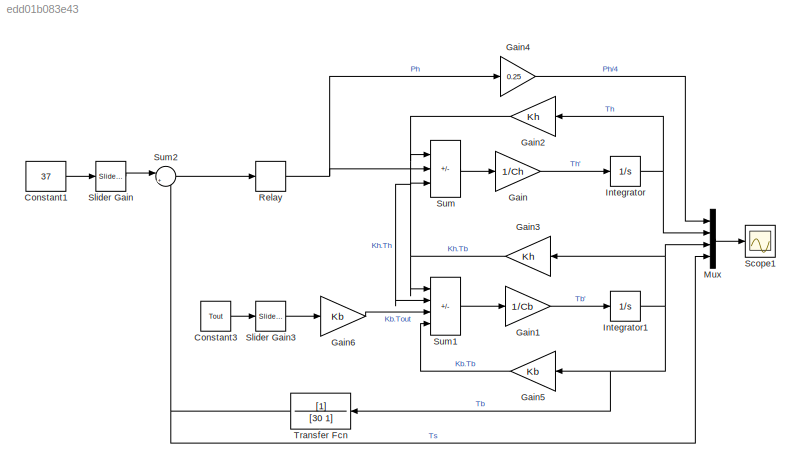
MODEL slx_edd01b083e43
KIND model
CONFIG AbsTol = auto
CONFIG EnableMultiTasking = off
CONFIG FixedStep = auto
CONFIG MaxStep = auto
CONFIG MinStep = auto
CONFIG RelTol = 1e-3
CONFIG SampleTimeConstraint = Unconstrained
CONFIG Solver = VariableStepAuto
CONFIG SolverName = VariableStepAuto
CONFIG StartTime = 0.0
CONFIG StopTime = 1000
BLOCK [Constant] Constant1
  SampleTime = 0.01
  Value = 37
BLOCK [Constant] Constant3
  Value = Tout
BLOCK [Gain] Gain
  Gain = 1/Ch
BLOCK [Gain] Gain1
  Gain = 1/Cb
BLOCK [Gain] Gain2
  Gain = Kh
BLOCK [Gain] Gain3
  Gain = Kh
BLOCK [Gain] Gain4
  Gain = 0.25
BLOCK [Gain] Gain5
  Gain = Kb
BLOCK [Gain] Gain6
  Gain = Kb
BLOCK [Integrator] Integrator
  InitialCondition = 25
  Ports = [1, 1]
BLOCK [Integrator] Integrator1
  InitialCondition = 25
  Ports = [1, 1]
BLOCK [Mux] Mux
  DisplayOption = bar
  Ports = [4, 1]
BLOCK [Relay] Relay
  OffSwitchValue = -0.01/(0.19*2)+0.3
  OnOutputValue = Ph
  OnSwitchValue = 0.01/(0.19*2)+0.3
BLOCK [Scope] Scope1
  Floating = off
  NumInputPorts = 1
  Ports = [1]
  ScopeSpecificationString = Simulink.scopes.TimeScopeBlockCfg('CurrentConfiguration', extmgr.ConfigurationSet(extmgr.Configuration('Core','General UI',true,'FigureColor',[1 1 1]),extmgr.Configuration('Core','Source UI',true),extmgr.Configuration('Sources','WiredSimulink',true,'DataLoggingVariableName','ScopeData1'),extmgr.Configuration('Visuals','Time Domain',true,'SerializedDisplays',{struct('MinYLimReal','-6.1145','MaxYLim...<+2335ch>
BLOCK [Reference] Slider Gain  REF=simulink/Math
Operations/Slider
Gain
  Ports = [1, 1]
  SourceBlock = simulink/Math\nOperations/Slider\nGain
  SourceProductBaseCode = SL
  SourceType = Slider Gain
BLOCK [Reference] Slider Gain3  REF=simulink/Math
Operations/Slider
Gain
  Ports = [1, 1]
  SourceBlock = simulink/Math\nOperations/Slider\nGain
  SourceProductBaseCode = SL
  SourceType = Slider Gain
BLOCK [Sum] Sum
  IconShape = rectangular
  Inputs = |-++
  Ports = [3, 1]
BLOCK [Sum] Sum1
  IconShape = rectangular
  Inputs = |-++-
  Ports = [4, 1]
BLOCK [Sum] Sum2
  Inputs = |+-
  Ports = [2, 1]
BLOCK [TransferFcn] Transfer Fcn
  Denominator = [30 1]
LINE Constant1:1 -> Slider Gain:1
LINE Constant3:1 -> Slider Gain3:1
LINE Gain1:1 -> Integrator1:1
NET Gain2:1 -> Sum1:2, Sum:1
NET Gain3:1 -> Sum1:1, Sum:3
LINE Gain4:1 -> Mux:1
LINE Gain5:1 -> Sum1:4
LINE Gain6:1 -> Sum1:3
LINE Gain:1 -> Integrator:1
NET Integrator1:1 -> Gain3:1, Gain5:1, Mux:3, Transfer Fcn:1
NET Integrator:1 -> Gain2:1, Mux:2
LINE Mux:1 -> Scope1:1
NET Relay:1 -> Gain4:1, Sum:2
LINE Slider Gain3:1 -> Gain6:1
LINE Slider Gain:1 -> Sum2:1
LINE Sum1:1 -> Gain1:1
LINE Sum2:1 -> Relay:1
LINE Sum:1 -> Gain:1
NET Transfer Fcn:1 -> Mux:4, Sum2:2
note: NET lines group one-source signal fan-out (src -> all destinations, sorted); 1:1 wires keep LINE
